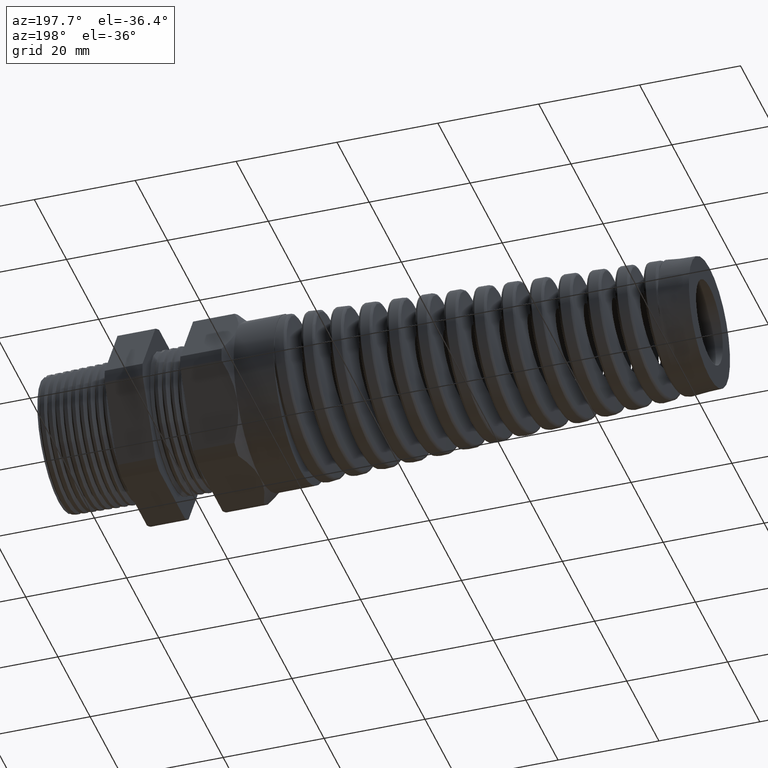
[diagram: clean part render]
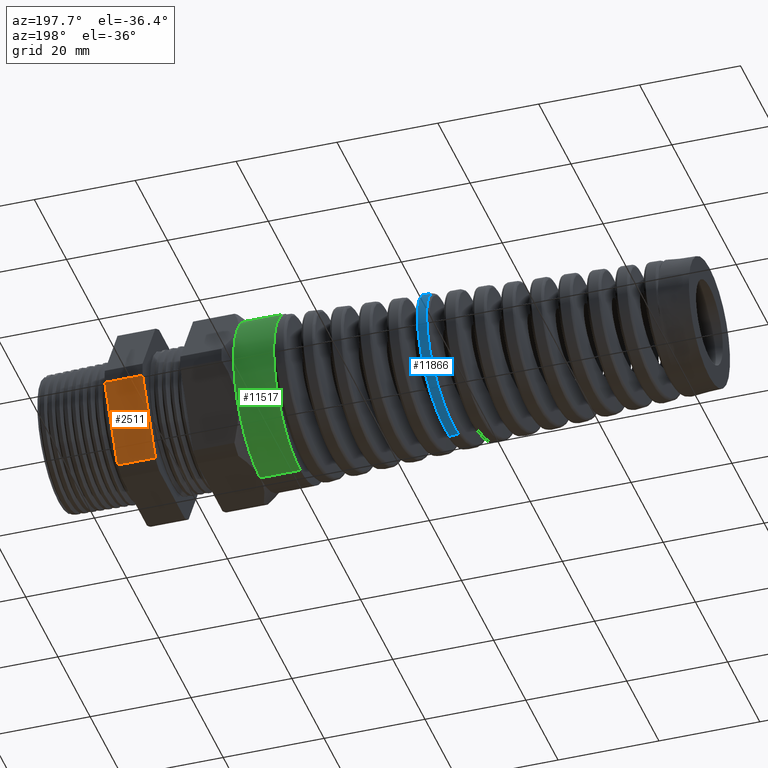
[diagram: same view with three faces highlighted in distinct colors, each labeled with its STEP entity id]
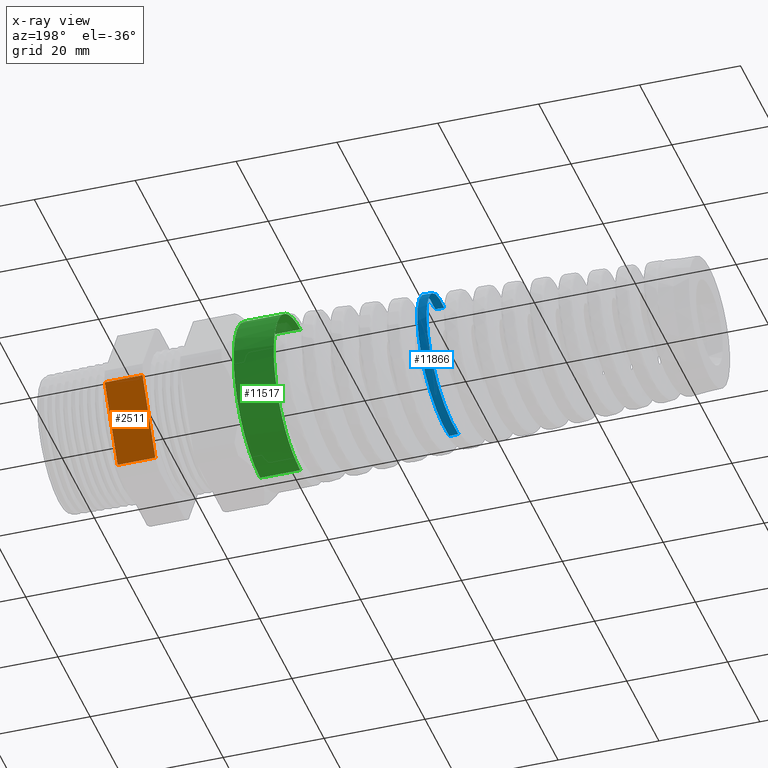
[diagram: x-ray of the same camera — body ghosted, the three highlighted faces saturated]
A machine part, auxiliary view with three faces highlighted in distinct colors.
The next image is the same camera in x-ray (body ghosted, the three faces saturated) — at least one of them is partly hidden behind the body in this view.
Their STEP definitions:

[orange] entity #2511 — the highlighted planar face has unit normal (0, 0.866, -0.5).
#1524 = CARTESIAN_POINT ( 'NONE',  ( -0.6052755905511810800, 0.4063420493440887400, -0.5961949252843789000 ) ) ;
#1624 = CARTESIAN_POINT ( 'NONE',  ( -0.6052755905511810800, 0.7194909755756818700, -0.05380507471562089000 ) ) ;
#2476 = ORIENTED_EDGE ( 'NONE', *, *, #2527, .T. ) ;
#2477 = ORIENTED_EDGE ( 'NONE', *, *, #8125, .F. ) ;
#2511 = ADVANCED_FACE ( 'NONE', ( #9324 ), #9343, .T. ) ;
#2520 = ORIENTED_EDGE ( 'NONE', *, *, #8084, .F. ) ;
#2521 = ORIENTED_EDGE ( 'NONE', *, *, #11581, .F. ) ;
#2527 = EDGE_CURVE ( 'NONE', #11582, #12074, #9769, .T. ) ;
#2623 = EDGE_LOOP ( 'NONE', ( #2476, #2520, #2477, #2521 ) ) ;
#3972 = DIRECTION ( 'NONE',  ( -1.000000000000000000, 0.0000000000000000000, 0.0000000000000000000 ) ) ;
#3973 = VECTOR ( 'NONE', #3972, 39.37007874015748100 ) ;
#3975 = CARTESIAN_POINT ( 'NONE',  ( 0.2800000000000000300, 0.7194909755756818700, -0.05380507471562089000 ) ) ;
#3976 = LINE ( 'NONE', #3975, #3973 ) ;
#8084 = EDGE_CURVE ( 'NONE', #12141, #12074, #17821, .T. ) ;
#8125 = EDGE_CURVE ( 'NONE', #11583, #12141, #3976, .T. ) ;
#9324 = FACE_OUTER_BOUND ( 'NONE', #2623, .T. ) ;
#9338 = DIRECTION ( 'NONE',  ( 0.0000000000000000000, 0.4999999999999998300, 0.8660254037844388200 ) ) ;
#9339 = DIRECTION ( 'NONE',  ( 0.0000000000000000000, 0.8660254037844388200, -0.4999999999999998300 ) ) ;
#9340 = CARTESIAN_POINT ( 'NONE',  ( 0.2800000000000000300, 0.7194909755756818700, -0.05380507471562089000 ) ) ;
#9341 = AXIS2_PLACEMENT_3D ( 'NONE', #9340, #9339, #9338 ) ;
#9343 = PLANE ( 'NONE',  #9341 ) ;
#9734 = DIRECTION ( 'NONE',  ( -1.000000000000000000, 0.0000000000000000000, 0.0000000000000000000 ) ) ;
#9735 = VECTOR ( 'NONE', #9734, 39.37007874015748100 ) ;
#9736 = CARTESIAN_POINT ( 'NONE',  ( 0.2800000000000000300, 0.4063420493440886800, -0.5961949252843790100 ) ) ;
#9769 = LINE ( 'NONE', #9736, #9735 ) ;
#11581 = EDGE_CURVE ( 'NONE', #11582, #11583, #16278, .T. ) ;
#11582 = VERTEX_POINT ( 'NONE', #16274 ) ;
#11583 = VERTEX_POINT ( 'NONE', #16273 ) ;
#12074 = VERTEX_POINT ( 'NONE', #1524 ) ;
#12141 = VERTEX_POINT ( 'NONE', #1624 ) ;
#16273 = CARTESIAN_POINT ( 'NONE',  ( -0.3100000000000000000, 0.7194909755756819800, -0.05380507471562084200 ) ) ;
#16274 = CARTESIAN_POINT ( 'NONE',  ( -0.3100000000000000000, 0.4063420493440886800, -0.5961949252843790100 ) ) ;
#16275 = DIRECTION ( 'NONE',  ( 0.0000000000000000000, 0.4999999999999998300, 0.8660254037844388200 ) ) ;
#16276 = VECTOR ( 'NONE', #16275, 39.37007874015748100 ) ;
#16277 = CARTESIAN_POINT ( 'NONE',  ( -0.3100000000000000000, 0.8879165124598851200, 0.2379165124598850700 ) ) ;
#16278 = LINE ( 'NONE', #16277, #16276 ) ;
#17815 = DIRECTION ( 'NONE',  ( 0.0000000000000000000, -0.4999999999999998300, -0.8660254037844388200 ) ) ;
#17816 = VECTOR ( 'NONE', #17815, 39.37007874015748100 ) ;
#17817 = CARTESIAN_POINT ( 'NONE',  ( -0.6052755905511810800, 0.8879165124598850100, 0.2379165124598849300 ) ) ;
#17821 = LINE ( 'NONE', #17817, #17816 ) ;

[blue] entity #11866 — the highlighted conical surface has half-angle 2.5 deg.
#832 = DIRECTION ( 'NONE',  ( 0.9990482215818576900, 0.0000000000000000000, -0.04361938736533626400 ) ) ;
#833 = VECTOR ( 'NONE', #832, 39.37007874015748100 ) ;
#834 = CARTESIAN_POINT ( 'NONE',  ( -1.530000000000000000, 0.0000000000000000000, -0.6500000000000000200 ) ) ;
#838 = LINE ( 'NONE', #834, #833 ) ;
#840 = CARTESIAN_POINT ( 'NONE',  ( -2.769224545372309900, -4.405264468855764800E-014, -0.5958942878736724900 ) ) ;
#11825 = EDGE_LOOP ( 'NONE', ( #11826, #11830, #11833, #11984 ) ) ;
#11826 = ORIENTED_EDGE ( 'NONE', *, *, #11827, .T. ) ;
#11827 = EDGE_CURVE ( 'NONE', #11828, #11829, #16819, .T. ) ;
#11828 = VERTEX_POINT ( 'NONE', #16820 ) ;
#11829 = VERTEX_POINT ( 'NONE', #16818 ) ;
#11830 = ORIENTED_EDGE ( 'NONE', *, *, #11831, .T. ) ;
#11831 = EDGE_CURVE ( 'NONE', #11829, #11832, #16842, .T. ) ;
#11832 = VERTEX_POINT ( 'NONE', #16838 ) ;
#11833 = ORIENTED_EDGE ( 'NONE', *, *, #11834, .T. ) ;
#11834 = EDGE_CURVE ( 'NONE', #11832, #11983, #16923, .T. ) ;
#11866 = ADVANCED_FACE ( 'NONE', ( #17354 ), #17352, .T. ) ;
#11983 = VERTEX_POINT ( 'NONE', #840 ) ;
#11984 = ORIENTED_EDGE ( 'NONE', *, *, #11985, .F. ) ;
#11985 = EDGE_CURVE ( 'NONE', #11828, #11983, #838, .T. ) ;
#16807 = CARTESIAN_POINT ( 'NONE',  ( -2.814949067705367900, 0.3934385549355081700, -0.4465710794598832200 ) ) ;
#16808 = CARTESIAN_POINT ( 'NONE',  ( -2.817225233758116500, 0.3634125379806789600, -0.4712475316953004300 ) ) ;
#16809 = CARTESIAN_POINT ( 'NONE',  ( -2.821869570493974200, 0.2979858105462229200, -0.5148850263849944500 ) ) ;
#16810 = CARTESIAN_POINT ( 'NONE',  ( -2.824164015494399200, 0.2636337926832098000, -0.5331404566844687400 ) ) ;
#16811 = CARTESIAN_POINT ( 'NONE',  ( -2.827615302450266800, 0.2098508935758634800, -0.5553349386112015300 ) ) ;
#16812 = CARTESIAN_POINT ( 'NONE',  ( -2.828767393496868500, 0.1915390411951872800, -0.5618656199539687800 ) ) ;
#16813 = CARTESIAN_POINT ( 'NONE',  ( -2.831081338268009300, 0.1541299871161988500, -0.5731529085119191300 ) ) ;
#16814 = CARTESIAN_POINT ( 'NONE',  ( -2.832246295661672100, 0.1349647388506895200, -0.5779132283703117800 ) ) ;
#16815 = CARTESIAN_POINT ( 'NONE',  ( -2.835700700472201700, 0.07751099231297736700, -0.5891986827071029600 ) ) ;
#16816 = CARTESIAN_POINT ( 'NONE',  ( -2.837972900896922600, 0.03890448097872880500, -0.5928926698480928600 ) ) ;
#16817 = CARTESIAN_POINT ( 'NONE',  ( -2.840269006309000100, -5.288695755097307700E-013, -0.5927924197207495900 ) ) ;
#16818 = CARTESIAN_POINT ( 'NONE',  ( -2.730106989645696200, -7.845560381928940000E-013, 0.5976021972409727400 ) ) ;
#16819 = B_SPLINE_CURVE_WITH_KNOTS ( 'NONE', 3,
 ( #16817, #16816, #16815, #16814, #16813, #16812, #16811, #16810, #16809, #16808, #16807, #16880, #16879, #16878, #16877, #16876, #16875, #16874, #16873, #16872, #16871, #16870, #16869, #16868, #16867, #16866, #16865, #16864, #16863, #16862, #16861, #16860, #16859, #16858, #16857, #16856, #16855, #16854, #16853, #16852, #16851, #16850, #16849, #16848, #16847, #16846, #16845, #16844, #16843 ),
 .UNSPECIFIED., .F., .F.,
 ( 4, 2, 2, 2, 2, 2, 2, 2, 2, 2, 2, 2, 2, 1, 2, 2, 2, 2, 2, 2, 2, 2, 2, 2, 4 ),
 ( 0.7012281575358224600, 0.7042329605766286500, 0.7057353620970318000, 0.7072377636174349600, 0.7102425666582411500, 0.7132473696990473400, 0.7147497712194504900, 0.7162521727398536400, 0.7192569757806598400, 0.7207593773010629900, 0.7222617788214660300, 0.7252665818622723300, 0.7267689833826753700, 0.7282713849030785200, 0.7297737864234816700, 0.7312761879438848300, 0.7342809909846910200, 0.7357833925050941700, 0.7372857940254972100, 0.7402905970663035100, 0.7417929985867066600, 0.7432954001071097000, 0.7463002031479160100, 0.7478026046683190500, 0.7493050061887222000 ),
 .UNSPECIFIED. ) ;
#16820 = CARTESIAN_POINT ( 'NONE',  ( -2.840269006309000100, -5.288695755097307700E-013, -0.5927924197207495900 ) ) ;
#16838 = CARTESIAN_POINT ( 'NONE',  ( -2.659414506500084900, 3.333357805779877300E-014, 0.6006886977116543400 ) ) ;
#16839 = DIRECTION ( 'NONE',  ( 0.9990482215818576900, 5.341834311772755600E-018, 0.04361938736533626400 ) ) ;
#16840 = VECTOR ( 'NONE', #16839, 39.37007874015748100 ) ;
#16841 = CARTESIAN_POINT ( 'NONE',  ( -1.530000000000000000, 7.960204194457796700E-017, 0.6500000000000000200 ) ) ;
#16842 = LINE ( 'NONE', #16841, #16840 ) ;
#16843 = CARTESIAN_POINT ( 'NONE',  ( -2.730106989645696200, -7.845560381928940000E-013, 0.5976021972409727400 ) ) ;
#16844 = CARTESIAN_POINT ( 'NONE',  ( -2.731248791712504300, 0.01938927367713469100, 0.5975523450861463000 ) ) ;
#16845 = CARTESIAN_POINT ( 'NONE',  ( -2.732390605456660900, 0.03876155745174828000, 0.5965611046696419600 ) ) ;
#16846 = CARTESIAN_POINT ( 'NONE',  ( -2.734681286598068100, 0.07747139346168292800, 0.5926772196973765200 ) ) ;
#16847 = CARTESIAN_POINT ( 'NONE',  ( -2.735833177971379800, 0.09686907578771790400, 0.5897723378140800100 ) ) ;
#16848 = CARTESIAN_POINT ( 'NONE',  ( -2.739287713780165700, 0.1546105088837240700, 0.5781752565170245100 ) ) ;
#16849 = CARTESIAN_POINT ( 'NONE',  ( -2.741547748327056500, 0.1917530225195634200, 0.5668050598785068200 ) ) ;
#16850 = CARTESIAN_POINT ( 'NONE',  ( -2.744956141548539300, 0.2455039554391724200, 0.5444796835457880200 ) ) ;
#16851 = CARTESIAN_POINT ( 'NONE',  ( -2.746095184186365700, 0.2630914364711459100, 0.5361531878614045300 ) ) ;
#16852 = CARTESIAN_POINT ( 'NONE',  ( -2.748391864601782900, 0.2975896596446929200, 0.5176852711095085700 ) ) ;
#16853 = CARTESIAN_POINT ( 'NONE',  ( -2.749550040931821600, 0.3145002151752424600, 0.5075274490050554200 ) ) ;
#16854 = CARTESIAN_POINT ( 'NONE',  ( -2.752992764871196500, 0.3630950627123907800, 0.4749916841609690400 ) ) ;
#16855 = CARTESIAN_POINT ( 'NONE',  ( -2.755272400962904800, 0.3930560846330476400, 0.4503766276114089500 ) ) ;
#16856 = CARTESIAN_POINT ( 'NONE',  ( -2.758716354375472700, 0.4343558544505133300, 0.4090855048816443000 ) ) ;
#16857 = CARTESIAN_POINT ( 'NONE',  ( -2.759872876109708900, 0.4475694763814846400, 0.3945157606513717300 ) ) ;
#16858 = CARTESIAN_POINT ( 'NONE',  ( -2.762176111306681800, 0.4724383702948002400, 0.3642021250699662400 ) ) ;
#16859 = CARTESIAN_POINT ( 'NONE',  ( -2.763317485457956300, 0.4840356568680052600, 0.3485452430206587600 ) ) ;
#16860 = CARTESIAN_POINT ( 'NONE',  ( -2.766732341919745200, 0.5163874852980304700, 0.3001184975719042900 ) ) ;
#16861 = CARTESIAN_POINT ( 'NONE',  ( -2.768996742704180800, 0.5347251090950414500, 0.2659063344327315400 ) ) ;
#16862 = CARTESIAN_POINT ( 'NONE',  ( -2.772453279610892700, 0.5572462907636213100, 0.2116185339777268400 ) ) ;
#16863 = CARTESIAN_POINT ( 'NONE',  ( -2.773611791259333400, 0.5638812799448176300, 0.1930775394432422400 ) ) ;
#16864 = CARTESIAN_POINT ( 'NONE',  ( -2.775909360212018000, 0.5751922980144614800, 0.1558054870560078600 ) ) ;
#16865 = CARTESIAN_POINT ( 'NONE',  ( -2.778199591385006200, 0.5846269472363633300, 0.1181535811431300300 ) ) ;
#16866 = CARTESIAN_POINT ( 'NONE',  ( -2.780492899113383500, 0.5903583921402630900, 0.07975305813800093200 ) ) ;
#16867 = CARTESIAN_POINT ( 'NONE',  ( -2.782794476394244900, 0.5942096880399896400, 0.04097286157730596600 ) ) ;
#16868 = CARTESIAN_POINT ( 'NONE',  ( -2.783954964078546400, 0.5951925611229538200, 0.02128299273824239500 ) ) ;
#16869 = CARTESIAN_POINT ( 'NONE',  ( -2.787409791062088100, 0.5952101271261741600, -0.03744569652313919900 ) ) ;
#16870 = CARTESIAN_POINT ( 'NONE',  ( -2.789675451577053900, 0.5913958263954641700, -0.07606596001232142400 ) ) ;
#16871 = CARTESIAN_POINT ( 'NONE',  ( -2.793100056678236200, 0.5800693400217524800, -0.1332118577169793300 ) ) ;
#16872 = CARTESIAN_POINT ( 'NONE',  ( -2.794245811143564000, 0.5753530246629426900, -0.1521288200927538900 ) ) ;
#16873 = CARTESIAN_POINT ( 'NONE',  ( -2.796558628454091100, 0.5639785314176880600, -0.1896902244872157900 ) ) ;
#16874 = CARTESIAN_POINT ( 'NONE',  ( -2.797716094111341300, 0.5573604843176178700, -0.2081750539618939800 ) ) ;
#16875 = CARTESIAN_POINT ( 'NONE',  ( -2.801166137227378200, 0.5350207839024147000, -0.2621008921675864700 ) ) ;
#16876 = CARTESIAN_POINT ( 'NONE',  ( -2.803454679905723200, 0.5167541304191382000, -0.2963082882599946100 ) ) ;
#16877 = CARTESIAN_POINT ( 'NONE',  ( -2.806916008663123300, 0.4842526658585786800, -0.3449802785580272600 ) ) ;
#16878 = CARTESIAN_POINT ( 'NONE',  ( -2.808079436955345500, 0.4724922014150511100, -0.3608382953306924500 ) ) ;
#16879 = CARTESIAN_POINT ( 'NONE',  ( -2.810382515685537500, 0.4476782175139154600, -0.3910471593165370000 ) ) ;
#16880 = CARTESIAN_POINT ( 'NONE',  ( -2.811525359207603300, 0.4346058578475296400, -0.4054457782007158100 ) ) ;
#16881 = CARTESIAN_POINT ( 'NONE',  ( -2.749707791605176000, 0.3164867469014163200, -0.5062832569657306200 ) ) ;
#16882 = CARTESIAN_POINT ( 'NONE',  ( -2.746267905493108100, 0.3651410341580045800, -0.4737920011469992600 ) ) ;
#16883 = CARTESIAN_POINT ( 'NONE',  ( -2.743983249248306900, 0.3953489755736870300, -0.4490662100608440700 ) ) ;
#16884 = CARTESIAN_POINT ( 'NONE',  ( -2.740522858409094400, 0.4372004030850467100, -0.4072223229345644000 ) ) ;
#16885 = CARTESIAN_POINT ( 'NONE',  ( -2.739373144052859900, 0.4504354298049731400, -0.3926006139222644200 ) ) ;
#16886 = CARTESIAN_POINT ( 'NONE',  ( -2.737091685082369900, 0.4752286138485691300, -0.3623590311628195300 ) ) ;
#16887 = CARTESIAN_POINT ( 'NONE',  ( -2.735956029999728300, 0.4868344797421657600, -0.3466918504709246600 ) ) ;
#16888 = CARTESIAN_POINT ( 'NONE',  ( -2.733681460891168600, 0.5084801860832250900, -0.3142763193388582500 ) ) ;
#16889 = CARTESIAN_POINT ( 'NONE',  ( -2.732542565305233800, 0.5185200604445924200, -0.2975279910026811800 ) ) ;
#16890 = CARTESIAN_POINT ( 'NONE',  ( -2.730249055676820200, 0.5370039266546829900, -0.2629304355459147200 ) ) ;
#16891 = CARTESIAN_POINT ( 'NONE',  ( -2.729088600584361800, 0.5454803089080896300, -0.2449866654200800700 ) ) ;
#16892 = CARTESIAN_POINT ( 'NONE',  ( -2.725635064377391400, 0.5679801202705308000, -0.1905339279495683600 ) ) ;
#16893 = CARTESIAN_POINT ( 'NONE',  ( -2.723354362991063500, 0.5792523346921668600, -0.1532124288132437600 ) ) ;
#16894 = CARTESIAN_POINT ( 'NONE',  ( -2.719919635441520300, 0.5906589230223366900, -0.09572800674635423300 ) ) ;
#16895 = CARTESIAN_POINT ( 'NONE',  ( -2.718773490166644300, 0.5935379654622570100, -0.07631116820139985400 ) ) ;
#16896 = CARTESIAN_POINT ( 'NONE',  ( -2.716467019030776700, 0.5973813891400957500, -0.03696832244194185600 ) ) ;
#16897 = CARTESIAN_POINT ( 'NONE',  ( -2.715325272403647600, 0.5983144260280989200, -0.01736654665907905500 ) ) ;
#16898 = CARTESIAN_POINT ( 'NONE',  ( -2.711912571245138200, 0.5982511127633827200, 0.04123592058890976400 ) ) ;
#16899 = CARTESIAN_POINT ( 'NONE',  ( -2.709653804395319100, 0.5944189577044589600, 0.08003562467800128000 ) ) ;
#16900 = CARTESIAN_POINT ( 'NONE',  ( -2.706213587585843500, 0.5828956744579810700, 0.1378213597769907000 ) ) ;
#16901 = CARTESIAN_POINT ( 'NONE',  ( -2.705054849289606300, 0.5780584057983735300, 0.1570667693251121300 ) ) ;
#16902 = CARTESIAN_POINT ( 'NONE',  ( -2.702759236329841800, 0.5666362459104518100, 0.1945889985624249300 ) ) ;
#16903 = CARTESIAN_POINT ( 'NONE',  ( -2.701616501635815600, 0.5600374489307086100, 0.2129660079458720300 ) ) ;
#16904 = CARTESIAN_POINT ( 'NONE',  ( -2.699332596898771800, 0.5450980782444695400, 0.2489658421953213900 ) ) ;
#16905 = CARTESIAN_POINT ( 'NONE',  ( -2.698191445764173100, 0.5367574666185533900, 0.2665886518513149700 ) ) ;
#16906 = CARTESIAN_POINT ( 'NONE',  ( -2.695904464411204200, 0.5183176036937018300, 0.3010723841250842500 ) ) ;
#16907 = CARTESIAN_POINT ( 'NONE',  ( -2.694755717791947000, 0.5081813846688523200, 0.3179880329171127000 ) ) ;
#16908 = CARTESIAN_POINT ( 'NONE',  ( -2.691309608950610800, 0.4752787933135281300, 0.3671820128987644500 ) ) ;
#16909 = CARTESIAN_POINT ( 'NONE',  ( -2.689053866823537300, 0.4504735264848011000, 0.3973268913147977000 ) ) ;
#16910 = CARTESIAN_POINT ( 'NONE',  ( -2.685650718375463000, 0.4091125424074900100, 0.4387017941750996400 ) ) ;
#16911 = CARTESIAN_POINT ( 'NONE',  ( -2.684513257602063600, 0.3946283303481104600, 0.4518483821001037500 ) ) ;
#16912 = CARTESIAN_POINT ( 'NONE',  ( -2.682219897406365600, 0.3642299809890682800, 0.4768176646091461000 ) ) ;
#16913 = CARTESIAN_POINT ( 'NONE',  ( -2.681064247499099100, 0.3483113167903092400, 0.4886257527947098800 ) ) ;
#16914 = CARTESIAN_POINT ( 'NONE',  ( -2.677630110221089800, 0.2994550952001064400, 0.5212806340838026500 ) ) ;
#16915 = CARTESIAN_POINT ( 'NONE',  ( -2.675357589095530600, 0.2650957519470807900, 0.5396733043455416200 ) ) ;
#16916 = CARTESIAN_POINT ( 'NONE',  ( -2.671931267117714900, 0.2108845636289110000, 0.5622111186855161000 ) ) ;
#16917 = CARTESIAN_POINT ( 'NONE',  ( -2.670781550894617800, 0.1922702259879064100, 0.5689033586541614200 ) ) ;
#16918 = CARTESIAN_POINT ( 'NONE',  ( -2.668492306582570500, 0.1545862131624330900, 0.5803808776305768900 ) ) ;
#16919 = CARTESIAN_POINT ( 'NONE',  ( -2.667357477641531200, 0.1355984430219191200, 0.5851530288613149300 ) ) ;
#16920 = CARTESIAN_POINT ( 'NONE',  ( -2.663961164781468500, 0.07821149232494699300, 0.5966522085846915900 ) ) ;
#16921 = CARTESIAN_POINT ( 'NONE',  ( -2.661707567700857700, 0.03939268640334989100, 0.6005885804974793200 ) ) ;
#16922 = CARTESIAN_POINT ( 'NONE',  ( -2.659414506500084900, 3.333357805779877300E-014, 0.6006886977116543400 ) ) ;
#16923 = B_SPLINE_CURVE_WITH_KNOTS ( 'NONE', 3,
 ( #16922, #16921, #16920, #16919, #16918, #16917, #16916, #16915, #16914, #16913, #16912, #16911, #16910, #16909, #16908, #16907, #16906, #16905, #16904, #16903, #16902, #16901, #16900, #16899, #16898, #16897, #16896, #16895, #16894, #16893, #16892, #16891, #16890, #16889, #16888, #16887, #16886, #16885, #16884, #16883, #16882, #16881, #16964, #16963, #16962, #16961, #16960, #16959, #16958, #16957, #16956, #16955 ),
 .UNSPECIFIED., .F., .F.,
 ( 4, 2, 2, 2, 2, 2, 2, 2, 2, 2, 2, 2, 2, 2, 2, 2, 2, 2, 2, 2, 2, 2, 2, 2, 2, 4 ),
 ( 0.4819501023667372400, 0.4849651309245373000, 0.4864726452034373600, 0.4879801594823373600, 0.4909951880401374200, 0.4925027023190374800, 0.4940102165979374800, 0.4970252451557375400, 0.4985327594346376000, 0.5000402737135376500, 0.5015477879924376000, 0.5030553022713376600, 0.5060703308291377700, 0.5075778451080377200, 0.5090853593869377700, 0.5121003879447378900, 0.5136079022236379500, 0.5151154165025378900, 0.5166229307814379500, 0.5181304450603380100, 0.5211454736181380100, 0.5226529878970380700, 0.5241605021759381300, 0.5271755307337381300, 0.5286830450126381900, 0.5301905592915382400 ),
 .UNSPECIFIED. ) ;
#16955 = CARTESIAN_POINT ( 'NONE',  ( -2.769224545372309900, -4.405264468855764800E-014, -0.5958942878736724900 ) ) ;
#16956 = CARTESIAN_POINT ( 'NONE',  ( -2.768076574285343500, 0.01950540491199534400, -0.5959444093737627000 ) ) ;
#16957 = CARTESIAN_POINT ( 'NONE',  ( -2.766928052824888100, 0.03905532768641945700, -0.5950392669264500400 ) ) ;
#16958 = CARTESIAN_POINT ( 'NONE',  ( -2.764620867170530800, 0.07824615245404291400, -0.5912653137903987100 ) ) ;
#16959 = CARTESIAN_POINT ( 'NONE',  ( -2.763464309883972600, 0.09783520286490528200, -0.5883887505761538100 ) ) ;
#16960 = CARTESIAN_POINT ( 'NONE',  ( -2.760031506515922700, 0.1554522420016837500, -0.5770061751954209700 ) ) ;
#16961 = CARTESIAN_POINT ( 'NONE',  ( -2.757766663293566500, 0.1927635146621054500, -0.5657410747323737800 ) ) ;
#16962 = CARTESIAN_POINT ( 'NONE',  ( -2.754326318312408300, 0.2470747988194728900, -0.5433261101726691900 ) ) ;
#16963 = CARTESIAN_POINT ( 'NONE',  ( -2.753165986814406300, 0.2649969852025723100, -0.5348735844447983800 ) ) ;
#16964 = CARTESIAN_POINT ( 'NONE',  ( -2.750856221758343000, 0.2997075007114607400, -0.5163418507488303200 ) ) ;
#17348 = DIRECTION ( 'NONE',  ( 0.0000000000000000000, 0.0000000000000000000, -1.000000000000000000 ) ) ;
#17349 = DIRECTION ( 'NONE',  ( 1.000000000000000000, 0.0000000000000000000, 0.0000000000000000000 ) ) ;
#17350 = CARTESIAN_POINT ( 'NONE',  ( -1.530000000000000000, 0.0000000000000000000, 0.0000000000000000000 ) ) ;
#17351 = AXIS2_PLACEMENT_3D ( 'NONE', #17350, #17349, #17348 ) ;
#17352 = CONICAL_SURFACE ( 'NONE', #17351, 0.6500000000000000200, 0.04363323129985850100 ) ;
#17354 = FACE_OUTER_BOUND ( 'NONE', #11825, .T. ) ;

[green] entity #11517 — the highlighted cylindrical surface (partial cylindrical patch) has radius 16.51 mm, axis along (1, 0, 0).
#11517 = ADVANCED_FACE ( 'NONE', ( #16141 ), #16139, .T. ) ;
#11518 = EDGE_LOOP ( 'NONE', ( #11519, #11523, #11527, #11551, #11554, #11557 ) ) ;
#11519 = ORIENTED_EDGE ( 'NONE', *, *, #11520, .F. ) ;
#11520 = EDGE_CURVE ( 'NONE', #11521, #11522, #16134, .T. ) ;
#11521 = VERTEX_POINT ( 'NONE', #16195 ) ;
#11522 = VERTEX_POINT ( 'NONE', #16194 ) ;
#11523 = ORIENTED_EDGE ( 'NONE', *, *, #11524, .T. ) ;
#11524 = EDGE_CURVE ( 'NONE', #11521, #11526, #16193, .T. ) ;
#11526 = VERTEX_POINT ( 'NONE', #16189 ) ;
#11527 = ORIENTED_EDGE ( 'NONE', *, *, #11549, .F. ) ;
#11549 = EDGE_CURVE ( 'NONE', #11550, #11526, #16216, .T. ) ;
#11550 = VERTEX_POINT ( 'NONE', #16212 ) ;
#11551 = ORIENTED_EDGE ( 'NONE', *, *, #11552, .F. ) ;
#11552 = EDGE_CURVE ( 'NONE', #11553, #11550, #16211, .T. ) ;
#11553 = VERTEX_POINT ( 'NONE', #16206 ) ;
#11554 = ORIENTED_EDGE ( 'NONE', *, *, #11555, .F. ) ;
#11555 = EDGE_CURVE ( 'NONE', #11556, #11553, #16205, .T. ) ;
#11556 = VERTEX_POINT ( 'NONE', #16200 ) ;
#11557 = ORIENTED_EDGE ( 'NONE', *, *, #11558, .F. ) ;
#11558 = EDGE_CURVE ( 'NONE', #11522, #11556, #16199, .T. ) ;
#16133 = AXIS2_PLACEMENT_3D ( 'NONE', #16140, #16197, #16196 ) ;
#16134 = CIRCLE ( 'NONE', #16133, 0.6499999999999999100 ) ;
#16135 = DIRECTION ( 'NONE',  ( 0.0000000000000000000, 0.0000000000000000000, -1.000000000000000000 ) ) ;
#16136 = DIRECTION ( 'NONE',  ( 1.000000000000000000, 0.0000000000000000000, 0.0000000000000000000 ) ) ;
#16137 = CARTESIAN_POINT ( 'NONE',  ( 0.0000000000000000000, 0.0000000000000000000, 0.0000000000000000000 ) ) ;
#16138 = AXIS2_PLACEMENT_3D ( 'NONE', #16137, #16136, #16135 ) ;
#16139 = CYLINDRICAL_SURFACE ( 'NONE', #16138, 0.6500000000000000200 ) ;
#16140 = CARTESIAN_POINT ( 'NONE',  ( -1.606986927084337300, 0.0000000000000000000, 0.0000000000000000000 ) ) ;
#16141 = FACE_OUTER_BOUND ( 'NONE', #11518, .T. ) ;
#16189 = CARTESIAN_POINT ( 'NONE',  ( -1.293779527559055300, 0.0000000000000000000, 0.6499999999999999100 ) ) ;
#16190 = DIRECTION ( 'NONE',  ( 1.000000000000000000, 0.0000000000000000000, 0.0000000000000000000 ) ) ;
#16191 = VECTOR ( 'NONE', #16190, 39.37007874015748100 ) ;
#16192 = CARTESIAN_POINT ( 'NONE',  ( 0.0000000000000000000, 7.960204194457796700E-017, 0.6500000000000000200 ) ) ;
#16193 = LINE ( 'NONE', #16192, #16191 ) ;
#16194 = CARTESIAN_POINT ( 'NONE',  ( -1.606986927084337300, 0.0000000000000000000, -0.6499999999999999100 ) ) ;
#16195 = CARTESIAN_POINT ( 'NONE',  ( -1.606986927084337300, 7.960204194457796700E-017, 0.6499999999999999100 ) ) ;
#16196 = DIRECTION ( 'NONE',  ( 0.0000000000000000000, 0.0000000000000000000, 1.000000000000000000 ) ) ;
#16197 = DIRECTION ( 'NONE',  ( -1.000000000000000000, 0.0000000000000000000, 0.0000000000000000000 ) ) ;
#16198 = CARTESIAN_POINT ( 'NONE',  ( 0.0000000000000000000, 0.0000000000000000000, -0.6500000000000000200 ) ) ;
#16199 = LINE ( 'NONE', #16198, #16261 ) ;
#16200 = CARTESIAN_POINT ( 'NONE',  ( -1.293779527559055300, 0.0000000000000000000, -0.6500000000000001300 ) ) ;
#16201 = DIRECTION ( 'NONE',  ( 0.0000000000000000000, 0.0000000000000000000, -1.000000000000000000 ) ) ;
#16202 = DIRECTION ( 'NONE',  ( 1.000000000000000000, 0.0000000000000000000, 0.0000000000000000000 ) ) ;
#16203 = CARTESIAN_POINT ( 'NONE',  ( -1.293779527559055300, 0.0000000000000000000, 0.0000000000000000000 ) ) ;
#16204 = AXIS2_PLACEMENT_3D ( 'NONE', #16203, #16202, #16201 ) ;
#16205 = CIRCLE ( 'NONE', #16204, 0.6500000000000000200 ) ;
#16206 = CARTESIAN_POINT ( 'NONE',  ( -1.293779527559055300, 0.5629165124598852800, -0.3249999999999999000 ) ) ;
#16207 = DIRECTION ( 'NONE',  ( 0.0000000000000000000, 0.0000000000000000000, -1.000000000000000000 ) ) ;
#16208 = DIRECTION ( 'NONE',  ( 1.000000000000000000, 0.0000000000000000000, 0.0000000000000000000 ) ) ;
#16209 = CARTESIAN_POINT ( 'NONE',  ( -1.293779527559055300, 0.0000000000000000000, 0.0000000000000000000 ) ) ;
#16210 = AXIS2_PLACEMENT_3D ( 'NONE', #16209, #16208, #16207 ) ;
#16211 = CIRCLE ( 'NONE', #16210, 0.6500000000000000200 ) ;
#16212 = CARTESIAN_POINT ( 'NONE',  ( -1.293779527559055300, 0.5629165124598853900, 0.3250000000000002300 ) ) ;
#16213 = DIRECTION ( 'NONE',  ( 0.0000000000000000000, 0.0000000000000000000, -1.000000000000000000 ) ) ;
#16214 = DIRECTION ( 'NONE',  ( 1.000000000000000000, 0.0000000000000000000, 0.0000000000000000000 ) ) ;
#16215 = AXIS2_PLACEMENT_3D ( 'NONE', #16221, #16214, #16213 ) ;
#16216 = CIRCLE ( 'NONE', #16215, 0.6500000000000000200 ) ;
#16221 = CARTESIAN_POINT ( 'NONE',  ( -1.293779527559055300, 0.0000000000000000000, 0.0000000000000000000 ) ) ;
#16260 = DIRECTION ( 'NONE',  ( 1.000000000000000000, 0.0000000000000000000, 0.0000000000000000000 ) ) ;
#16261 = VECTOR ( 'NONE', #16260, 39.37007874015748100 ) ;